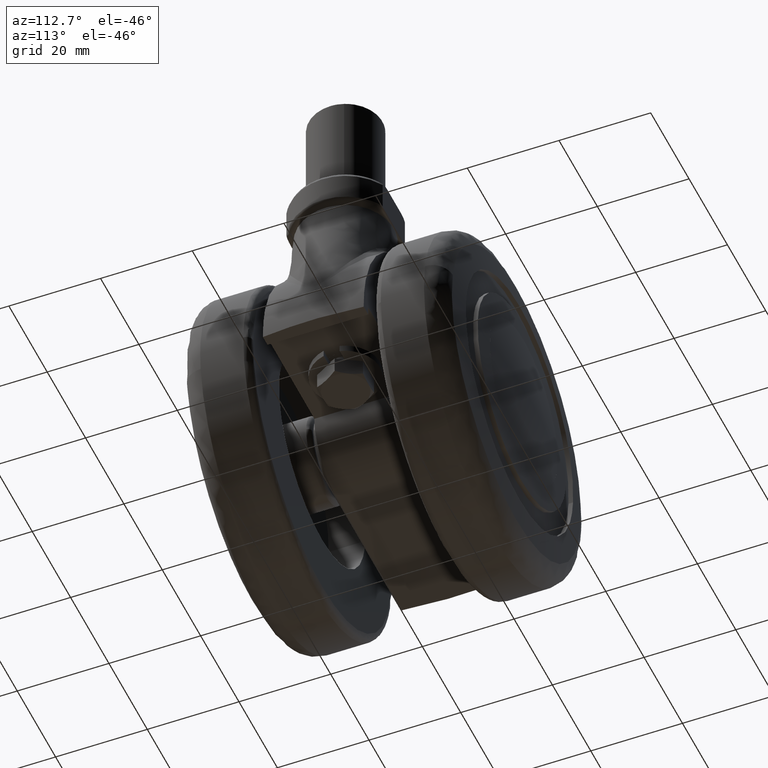
[diagram: clean part render]
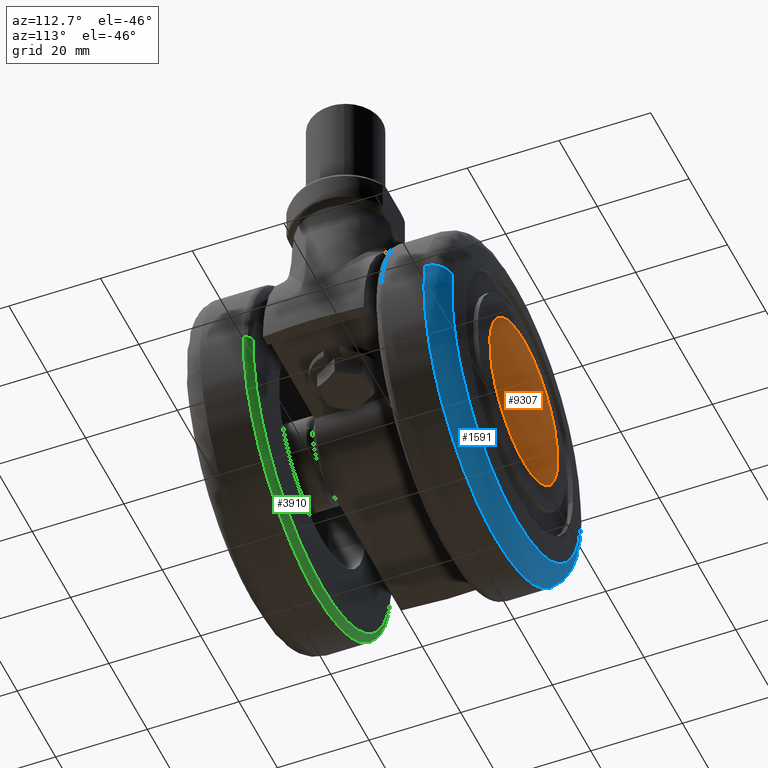
[diagram: same view with three faces highlighted in distinct colors, each labeled with its STEP entity id]
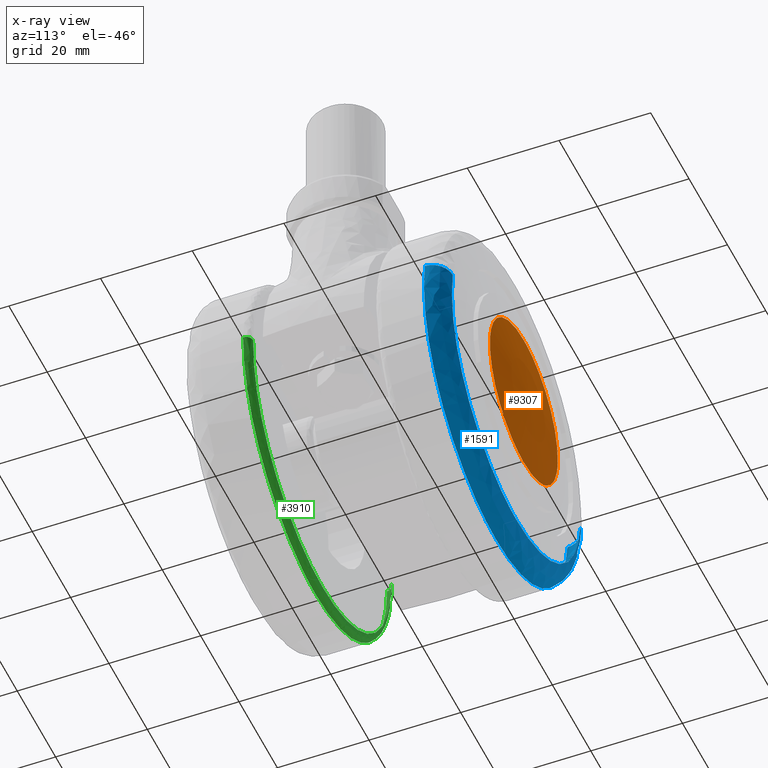
[diagram: x-ray of the same camera — body ghosted, the three highlighted faces saturated]
A machine part, auxiliary view with three faces highlighted in distinct colors.
The next image is the same camera in x-ray (body ghosted, the three faces saturated) — at least one of them is partly hidden behind the body in this view.
Their STEP definitions:

[orange] entity #9307 — the highlighted face is a freeform B-spline surface patch.
#6940=CARTESIAN_POINT('',(-17.666986804803450,30.499999552056249,-1.080559203234286));
#6941=VERTEX_POINT('',#6940);
#6947=CARTESIAN_POINT('',(0.0,30.499999552056249,-17.700000874372702));
#6948=VERTEX_POINT('',#6947);
#6949=CARTESIAN_POINT('',(0.0,30.499999552056249,-17.700000874372702));
#6950=CARTESIAN_POINT('',(-16.650498206592022,30.499999552056256,-17.700000874372698));
#6951=CARTESIAN_POINT('',(-17.666986804803447,30.499999552056256,-1.080559203234286));
#6959=(BOUNDED_CURVE()B_SPLINE_CURVE(2,(#6949,#6950,#6951),.UNSPECIFIED.,.F.,.U.)B_SPLINE_CURVE_WITH_KNOTS((3,3),(0.500000000000000,0.739332962240246),.UNSPECIFIED.)CURVE()GEOMETRIC_REPRESENTATION_ITEM()RATIONAL_B_SPLINE_CURVE((1.0,0.719603993285183,0.976072041669511))REPRESENTATION_ITEM(''));
#6960=EDGE_CURVE('',#6948,#6941,#6959,.T.);
#6962=CARTESIAN_POINT('',(17.576269484888599,30.499999552056249,2.089206056703662));
#6963=VERTEX_POINT('',#6962);
#6964=CARTESIAN_POINT('',(17.576269484888599,30.499999552056256,2.089206056703662));
#6965=CARTESIAN_POINT('',(17.700000874372698,30.499999552056249,1.048266969696663));
#6966=CARTESIAN_POINT('',(17.700000874372702,30.499999552056249,0.0));
#6967=CARTESIAN_POINT('',(17.700000874372705,30.499999552056252,-17.700000874372705));
#6968=CARTESIAN_POINT('',(0.0,30.499999552056249,-17.700000874372702));
#6976=(BOUNDED_CURVE()B_SPLINE_CURVE(2,(#6964,#6965,#6966,#6967,#6968),.UNSPECIFIED.,.F.,.U.)B_SPLINE_CURVE_WITH_KNOTS((3,2,3),(0.229562473514238,0.250000000000000,0.500000000000000),.UNSPECIFIED.)CURVE()GEOMETRIC_REPRESENTATION_ITEM()RATIONAL_B_SPLINE_CURVE((0.956026754185129,0.976055948332000,1.0,0.707106781186548,1.0))REPRESENTATION_ITEM(''));
#6977=EDGE_CURVE('',#6963,#6948,#6976,.T.);
#7021=CARTESIAN_POINT('',(0.0,30.499999552056249,17.700000874372702));
#7022=VERTEX_POINT('',#7021);
#7023=CARTESIAN_POINT('',(0.0,30.499999552056249,17.700000874372702));
#7024=CARTESIAN_POINT('',(15.720689885803013,30.499999552056256,17.700000874372705));
#7025=CARTESIAN_POINT('',(17.576269484888602,30.499999552056252,2.089206056703662));
#7033=(BOUNDED_CURVE()B_SPLINE_CURVE(2,(#7023,#7024,#7025),.UNSPECIFIED.,.F.,.U.)B_SPLINE_CURVE_WITH_KNOTS((3,3),(0.0,0.229562473514238),.UNSPECIFIED.)CURVE()GEOMETRIC_REPRESENTATION_ITEM()RATIONAL_B_SPLINE_CURVE((1.0,0.731050832854548,0.956026754185129))REPRESENTATION_ITEM(''));
#7034=EDGE_CURVE('',#7022,#6963,#7033,.T.);
#7036=CARTESIAN_POINT('',(-17.666986804803443,30.499999552056256,-1.080559203234286));
#7037=CARTESIAN_POINT('',(-17.700000874372698,30.499999552056259,-0.540783937187915));
#7038=CARTESIAN_POINT('',(-17.700000874372702,30.499999552056249,0.0));
#7039=CARTESIAN_POINT('',(-17.700000874372705,30.499999552056252,17.700000874372705));
#7040=CARTESIAN_POINT('',(0.0,30.499999552056249,17.700000874372702));
#7048=(BOUNDED_CURVE()B_SPLINE_CURVE(2,(#7036,#7037,#7038,#7039,#7040),.UNSPECIFIED.,.F.,.U.)B_SPLINE_CURVE_WITH_KNOTS((3,2,3),(0.739332962240247,0.750000000000000,1.0),.UNSPECIFIED.)CURVE()GEOMETRIC_REPRESENTATION_ITEM()RATIONAL_B_SPLINE_CURVE((0.976072041669512,0.987502787901365,1.0,0.707106781186548,1.0))REPRESENTATION_ITEM(''));
#7049=EDGE_CURVE('',#6941,#7022,#7048,.T.);
#9277=CARTESIAN_POINT('',(-19.317830197745025,28.661285594582328,19.318258914583183));
#9278=CARTESIAN_POINT('',(-9.722744867696759,30.226471714667028,19.445921285354927));
#9279=CARTESIAN_POINT('',(9.722799782367451,30.226471714667028,19.445921285354927));
#9280=CARTESIAN_POINT('',(19.317937873454291,28.661268030068637,19.318257481956454));
#9281=CARTESIAN_POINT('',(-19.445495439149660,30.226541646299722,9.722963494618814));
#9282=CARTESIAN_POINT('',(-9.787426761102388,31.812552999999951,9.787643971555742));
#9283=CARTESIAN_POINT('',(9.787482041100457,31.812552999999951,9.787643971555742));
#9284=CARTESIAN_POINT('',(19.445603816922389,30.226523848862591,9.722962768806397));
#9285=CARTESIAN_POINT('',(-19.445495439149660,30.226541646299722,-9.722962005065723));
#9286=CARTESIAN_POINT('',(-9.787426761102388,31.812552999999951,-9.787642472093635));
#9287=CARTESIAN_POINT('',(9.787482041100457,31.812552999999951,-9.787642472093635));
#9288=CARTESIAN_POINT('',(19.445603816922389,30.226523848862591,-9.722961279253418));
#9289=CARTESIAN_POINT('',(-19.317830236604710,28.661286071026499,-19.318255993896244));
#9290=CARTESIAN_POINT('',(-9.722744887384248,30.226472197429050,-19.445918345625486));
#9291=CARTESIAN_POINT('',(9.722799802055052,30.226472197429050,-19.445918345625486));
#9292=CARTESIAN_POINT('',(19.317937912314189,28.661268506512727,-19.318254561269743));
#9300=(BOUNDED_SURFACE()B_SPLINE_SURFACE(2,2,((#9277,#9281,#9285,#9289),(#9278,#9282,#9286,#9290),(#9279,#9283,#9287,#9291),(#9280,#9284,#9288,#9292)),.UNSPECIFIED.,.F.,.F.,.U.)B_SPLINE_SURFACE_WITH_KNOTS((3,1,3),(3,1,3),(36.098124809455868,55.141904456465539,74.185791663932804),(36.097702174568177,55.141904456465547,74.186103820800781),.UNSPECIFIED.)GEOMETRIC_REPRESENTATION_ITEM()RATIONAL_B_SPLINE_SURFACE(((1.013304978966519,1.006652341847496,1.006652341847496,1.013304976928158),(1.006652637119023,1.0,1.0,1.006652635080662),(1.006652637119023,1.0,1.0,1.006652635080662),(1.013305054112416,1.006652416993394,1.006652416993394,1.013305052074055)))REPRESENTATION_ITEM('')SURFACE());
#9301=ORIENTED_EDGE('',*,*,#7034,.T.);
#9302=ORIENTED_EDGE('',*,*,#6977,.T.);
#9303=ORIENTED_EDGE('',*,*,#6960,.T.);
#9304=ORIENTED_EDGE('',*,*,#7049,.T.);
#9305=EDGE_LOOP('',(#9301,#9302,#9303,#9304));
#9306=FACE_OUTER_BOUND('',#9305,.T.);
#9307=ADVANCED_FACE('',(#9306),#9300,.T.);

[blue] entity #1591 — the highlighted face is a freeform B-spline surface patch.
#273=CARTESIAN_POINT('',(-37.260424132890392,24.399335001054880,-4.232114534971689));
#274=VERTEX_POINT('',#273);
#290=CARTESIAN_POINT('',(0.0,24.399335000005451,-37.500000000000000));
#291=VERTEX_POINT('',#290);
#292=CARTESIAN_POINT('',(0.0,24.399335000005451,-37.500000000000000));
#293=CARTESIAN_POINT('',(-33.481790144008386,24.399335000005458,-37.500000000000000));
#294=CARTESIAN_POINT('',(-37.260424132890400,24.399335001054887,-4.232114534971689));
#302=(BOUNDED_CURVE()B_SPLINE_CURVE(2,(#292,#293,#294),.UNSPECIFIED.,.F.,.U.)B_SPLINE_CURVE_WITH_KNOTS((3,3),(0.500000000000000,0.730444235627714),.UNSPECIFIED.)CURVE()GEOMETRIC_REPRESENTATION_ITEM()RATIONAL_B_SPLINE_CURVE((1.0,0.730017784279973,0.957762331237371))REPRESENTATION_ITEM(''));
#303=EDGE_CURVE('',#291,#274,#302,.T.);
#305=CARTESIAN_POINT('',(27.647901938643450,24.399335000005479,-25.334630812213309));
#306=VERTEX_POINT('',#305);
#307=CARTESIAN_POINT('',(27.647901938643454,24.399335000005479,-25.334630812213312));
#308=CARTESIAN_POINT('',(16.500396505832679,24.399335000005454,-37.500000000000007));
#309=CARTESIAN_POINT('',(0.0,24.399335000005451,-37.500000000000000));
#317=(BOUNDED_CURVE()B_SPLINE_CURVE(2,(#307,#308,#309),.UNSPECIFIED.,.F.,.U.)B_SPLINE_CURVE_WITH_KNOTS((3,3),(0.368415198309261,0.500000000000000),.UNSPECIFIED.)CURVE()GEOMETRIC_REPRESENTATION_ITEM()RATIONAL_B_SPLINE_CURVE((0.853959782167923,0.845838815543479,1.0))REPRESENTATION_ITEM(''));
#318=EDGE_CURVE('',#306,#291,#317,.T.);
#411=CARTESIAN_POINT('',(36.957391236845567,24.399335001034899,6.356196422919185));
#412=VERTEX_POINT('',#411);
#458=CARTESIAN_POINT('',(36.957391236845559,24.399335001034895,6.356196422919186));
#459=CARTESIAN_POINT('',(37.500000000000000,24.399335000005454,3.201258624604239));
#460=CARTESIAN_POINT('',(37.500000000000000,24.399335000005451,-2.987958E-015));
#461=CARTESIAN_POINT('',(37.500000000000007,24.399335000005454,-14.582950903818212));
#462=CARTESIAN_POINT('',(27.647901938643454,24.399335000005479,-25.334630812213312));
#470=(BOUNDED_CURVE()B_SPLINE_CURVE(2,(#458,#459,#460,#461,#462),.UNSPECIFIED.,.F.,.U.)B_SPLINE_CURVE_WITH_KNOTS((3,2,3),(0.220849026354787,0.250000000000000,0.368415198309261),.UNSPECIFIED.)CURVE()GEOMETRIC_REPRESENTATION_ITEM()RATIONAL_B_SPLINE_CURVE((0.939659646669651,0.965847509990029,1.0,0.861267965643069,0.853959782167923))REPRESENTATION_ITEM(''));
#471=EDGE_CURVE('',#412,#306,#470,.T.);
#1461=CARTESIAN_POINT('',(33.118640990563513,28.858494704675589,5.695980706083025));
#1462=VERTEX_POINT('',#1461);
#1463=CARTESIAN_POINT('',(33.118640990563499,28.858494704675589,5.695980706083025));
#1464=CARTESIAN_POINT('',(36.957391235082049,28.330119688757037,6.356196422534316));
#1465=CARTESIAN_POINT('',(36.957391236845567,24.399335001034903,6.356196422919185));
#1473=(BOUNDED_CURVE()B_SPLINE_CURVE(2,(#1463,#1464,#1465),.UNSPECIFIED.,.F.,.U.)B_SPLINE_CURVE_WITH_KNOTS((3,3),(-1.707016080582619,-0.283065972864109),.UNSPECIFIED.)CURVE()GEOMETRIC_REPRESENTATION_ITEM()RATIONAL_B_SPLINE_CURVE((0.871223026979477,0.657276348781916,0.874224248278241))REPRESENTATION_ITEM(''));
#1474=EDGE_CURVE('',#1462,#412,#1473,.T.);
#1491=CARTESIAN_POINT('',(-33.390197982960132,28.858494704925779,-3.792526308501235));
#1492=VERTEX_POINT('',#1491);
#1508=CARTESIAN_POINT('',(-33.390197982960132,28.858494704925771,-3.792526308501235));
#1509=CARTESIAN_POINT('',(-37.260424142673919,28.330119692043091,-4.232114432548119));
#1510=CARTESIAN_POINT('',(-37.260424132890385,24.399335001054883,-4.232114534971689));
#1518=(BOUNDED_CURVE()B_SPLINE_CURVE(2,(#1508,#1509,#1510),.UNSPECIFIED.,.F.,.U.)B_SPLINE_CURVE_WITH_KNOTS((3,3),(-1.707016081476311,-0.283065972873740),.UNSPECIFIED.)CURVE()GEOMETRIC_REPRESENTATION_ITEM()RATIONAL_B_SPLINE_CURVE((0.891271465130289,0.672401481518124,0.894341749751451))REPRESENTATION_ITEM(''));
#1519=EDGE_CURVE('',#1492,#274,#1518,.T.);
#1525=CARTESIAN_POINT('',(-33.101077900871388,28.888372806870368,-3.759687463051096));
#1526=CARTESIAN_POINT('',(-29.341390437820305,28.888372806870361,-36.860765363922496));
#1527=CARTESIAN_POINT('',(3.759687463051091,28.888372806870358,-33.101077900871388));
#1528=CARTESIAN_POINT('',(36.860765363922475,28.888372806870361,-29.341390437820316));
#1529=CARTESIAN_POINT('',(33.101077900871388,28.888372806870368,3.759687463051085));
#1530=CARTESIAN_POINT('',(32.993477364782287,28.888372806870372,4.707025177226519));
#1531=CARTESIAN_POINT('',(32.831872584480607,28.888372806870375,5.646658358340000));
#1532=CARTESIAN_POINT('',(-37.539045840667178,28.576038493424608,-4.263760849260480));
#1533=CARTESIAN_POINT('',(-33.275284991406700,28.576038493424623,-41.802806689927642));
#1534=CARTESIAN_POINT('',(4.263760849260476,28.576038493424608,-37.539045840667178));
#1535=CARTESIAN_POINT('',(41.802806689927642,28.576038493424623,-33.275284991406700));
#1536=CARTESIAN_POINT('',(37.539045840667178,28.576038493424608,4.263760849260470));
#1537=CARTESIAN_POINT('',(37.417018954750482,28.576038493424619,5.338111176628155));
#1538=CARTESIAN_POINT('',(37.233747301966737,28.576038493424626,6.403723999414881));
#1539=CARTESIAN_POINT('',(-37.251045179339080,24.108020174241020,-4.231049150898621));
#1540=CARTESIAN_POINT('',(-33.019996028440438,24.108020174241016,-41.482094330237665));
#1541=CARTESIAN_POINT('',(4.231049150898616,24.108020174241009,-37.251045179339080));
#1542=CARTESIAN_POINT('',(41.482094330237665,24.108020174241016,-33.019996028440453));
#1543=CARTESIAN_POINT('',(37.251045179339080,24.108020174241020,4.231049150898611));
#1544=CARTESIAN_POINT('',(37.129954487272194,24.108020174241009,5.297157031026342));
#1545=CARTESIAN_POINT('',(36.948088899986978,24.108020174241030,6.354594440964673));
#1553=(BOUNDED_SURFACE()B_SPLINE_SURFACE(2,2,((#1525,#1532,#1539),(#1526,#1533,#1540),(#1527,#1534,#1541),(#1528,#1535,#1542),(#1529,#1536,#1543),(#1530,#1537,#1544),(#1531,#1538,#1545)),.UNSPECIFIED.,.F.,.F.,.U.)B_SPLINE_SURFACE_WITH_KNOTS((3,2,2,3),(3,3),(0.0,62.116394861809212,124.232789723618400,126.717443148538390),(0.0,7.429318410246981),.UNSPECIFIED.)GEOMETRIC_REPRESENTATION_ITEM()RATIONAL_B_SPLINE_SURFACE(((0.914236405898825,0.649283220488799,0.917613330009206),(0.646462762218676,0.459112568118270,0.648850608156679),(0.914236405898825,0.649283220488799,0.917613330009206),(0.646462762218676,0.459112568118270,0.648850608156679),(0.914236405898825,0.649283220488799,0.917613330009206),(0.903525470366373,0.641676401648412,0.906862831387589),(0.893671408859338,0.634678127734902,0.896972371835503)))REPRESENTATION_ITEM('')SURFACE());
#1554=ORIENTED_EDGE('',*,*,#471,.T.);
#1555=ORIENTED_EDGE('',*,*,#318,.T.);
#1556=ORIENTED_EDGE('',*,*,#303,.T.);
#1557=ORIENTED_EDGE('',*,*,#1519,.F.);
#1558=CARTESIAN_POINT('',(0.0,28.858494288646149,-33.604889112993462));
#1559=VERTEX_POINT('',#1558);
#1560=CARTESIAN_POINT('',(0.0,28.858494288646149,-33.604889112993462));
#1561=CARTESIAN_POINT('',(-30.004049366376591,28.858494288646146,-33.604889112993455));
#1562=CARTESIAN_POINT('',(-33.390197982960132,28.858494704925771,-3.792526308501235));
#1570=(BOUNDED_CURVE()B_SPLINE_CURVE(2,(#1560,#1561,#1562),.UNSPECIFIED.,.F.,.U.)B_SPLINE_CURVE_WITH_KNOTS((3,3),(0.500000000000000,0.730444236546521),.UNSPECIFIED.)CURVE()GEOMETRIC_REPRESENTATION_ITEM()RATIONAL_B_SPLINE_CURVE((1.0,0.730017783203523,0.957762333053458))REPRESENTATION_ITEM(''));
#1571=EDGE_CURVE('',#1559,#1492,#1570,.T.);
#1572=ORIENTED_EDGE('',*,*,#1571,.F.);
#1573=CARTESIAN_POINT('',(33.118640990563506,28.858494704675593,5.695980706083025));
#1574=CARTESIAN_POINT('',(33.604889112993447,28.858494288646153,2.868745097017918));
#1575=CARTESIAN_POINT('',(33.604889112993447,28.858494288646149,-3.534030E-015));
#1576=CARTESIAN_POINT('',(33.604889112993447,28.858494288646156,-33.604889112993455));
#1577=CARTESIAN_POINT('',(0.0,28.858494288646149,-33.604889112993462));
#1585=(BOUNDED_CURVE()B_SPLINE_CURVE(2,(#1573,#1574,#1575,#1576,#1577),.UNSPECIFIED.,.F.,.U.)B_SPLINE_CURVE_WITH_KNOTS((3,2,3),(0.220849026345278,0.250000000000000,0.500000000000000),.UNSPECIFIED.)CURVE()GEOMETRIC_REPRESENTATION_ITEM()RATIONAL_B_SPLINE_CURVE((0.939659646652566,0.965847509978889,1.0,0.707106781186548,1.0))REPRESENTATION_ITEM(''));
#1586=EDGE_CURVE('',#1462,#1559,#1585,.T.);
#1587=ORIENTED_EDGE('',*,*,#1586,.F.);
#1588=ORIENTED_EDGE('',*,*,#1474,.T.);
#1589=EDGE_LOOP('',(#1554,#1555,#1556,#1557,#1572,#1587,#1588));
#1590=FACE_OUTER_BOUND('',#1589,.T.);
#1591=ADVANCED_FACE('',(#1590),#1553,.T.);

[green] entity #3910 — the highlighted face is a freeform B-spline surface patch.
#2391=CARTESIAN_POINT('',(-37.488157098123487,-14.999999993783151,-0.942378579134916));
#2392=VERTEX_POINT('',#2391);
#2408=CARTESIAN_POINT('',(-28.357531062064691,-14.999999997795680,-24.537734860087301));
#2409=VERTEX_POINT('',#2408);
#2410=CARTESIAN_POINT('',(-28.357531062064695,-14.999999997795685,-24.537734860087301));
#2411=CARTESIAN_POINT('',(-37.150462118425452,-14.999999996067618,-14.376005711933878));
#2412=CARTESIAN_POINT('',(-37.488157098123487,-14.999999993783151,-0.942378579134916));
#2420=(BOUNDED_CURVE()B_SPLINE_CURVE(2,(#2410,#2411,#2412),.UNSPECIFIED.,.F.,.U.)B_SPLINE_CURVE_WITH_KNOTS((3,3),(0.635882132082846,0.745579891769716),.UNSPECIFIED.)CURVE()GEOMETRIC_REPRESENTATION_ITEM()RATIONAL_B_SPLINE_CURVE((0.854663299357961,0.865851778234720,0.989826157681369))REPRESENTATION_ITEM(''));
#2421=EDGE_CURVE('',#2409,#2392,#2420,.T.);
#2469=CARTESIAN_POINT('',(0.0,-15.0,-37.500000000000000));
#2470=VERTEX_POINT('',#2469);
#2471=CARTESIAN_POINT('',(0.0,-15.0,-37.500000000000000));
#2472=CARTESIAN_POINT('',(-17.141299843162088,-15.000000000000002,-37.500000000000000));
#2473=CARTESIAN_POINT('',(-28.357531062064695,-14.999999997795685,-24.537734860087301));
#2481=(BOUNDED_CURVE()B_SPLINE_CURVE(2,(#2471,#2472,#2473),.UNSPECIFIED.,.F.,.U.)B_SPLINE_CURVE_WITH_KNOTS((3,3),(0.500000000000000,0.635882132082846),.UNSPECIFIED.)CURVE()GEOMETRIC_REPRESENTATION_ITEM()RATIONAL_B_SPLINE_CURVE((1.0,0.840804179820082,0.854663299357961))REPRESENTATION_ITEM(''));
#2482=EDGE_CURVE('',#2470,#2409,#2481,.T.);
#2484=CARTESIAN_POINT('',(37.488157098123487,-14.999999993783151,0.942378579134925));
#2485=VERTEX_POINT('',#2484);
#2486=CARTESIAN_POINT('',(37.488157098123501,-14.999999993783149,0.942378579134925));
#2487=CARTESIAN_POINT('',(37.500000000000000,-14.999999999999998,0.471263704636508));
#2488=CARTESIAN_POINT('',(37.500000000000000,-15.0,0.0));
#2489=CARTESIAN_POINT('',(37.500000000000000,-14.999999999999996,-37.500000000000000));
#2490=CARTESIAN_POINT('',(0.0,-15.0,-37.500000000000000));
#2498=(BOUNDED_CURVE()B_SPLINE_CURVE(2,(#2486,#2487,#2488,#2489,#2490),.UNSPECIFIED.,.F.,.U.)B_SPLINE_CURVE_WITH_KNOTS((3,2,3),(0.245579891769716,0.250000000000000,0.500000000000000),.UNSPECIFIED.)CURVE()GEOMETRIC_REPRESENTATION_ITEM()RATIONAL_B_SPLINE_CURVE((0.989826157681370,0.994821521091714,1.0,0.707106781186547,1.0))REPRESENTATION_ITEM(''));
#2499=EDGE_CURVE('',#2485,#2470,#2498,.T.);
#3822=CARTESIAN_POINT('',(37.484507708172224,-15.104586337698418,0.942286840635368));
#3823=CARTESIAN_POINT('',(38.426794548807621,-15.104586337698420,-36.542220867536869));
#3824=CARTESIAN_POINT('',(0.942286840635378,-15.104586337698418,-37.484507708172224));
#3825=CARTESIAN_POINT('',(-36.542220867536848,-15.104586337698420,-38.426794548807621));
#3826=CARTESIAN_POINT('',(-37.484507708172224,-15.104586337698418,-0.942286840635381));
#3827=CARTESIAN_POINT('',(37.604729302184516,-13.383994995192797,0.945308975189726));
#3828=CARTESIAN_POINT('',(38.550038277374256,-13.383994995192795,-36.659420326994791));
#3829=CARTESIAN_POINT('',(0.945308975189737,-13.383994995192797,-37.604729302184516));
#3830=CARTESIAN_POINT('',(-36.659420326994770,-13.383994995192795,-38.550038277374256));
#3831=CARTESIAN_POINT('',(-37.604729302184516,-13.383994995192797,-0.945308975189739));
#3832=CARTESIAN_POINT('',(35.884636533293829,-13.503611562649683,0.902069224159345));
#3833=CARTESIAN_POINT('',(36.786705757453170,-13.503611562649683,-34.982567309134467));
#3834=CARTESIAN_POINT('',(0.902069224159356,-13.503611562649683,-35.884636533293829));
#3835=CARTESIAN_POINT('',(-34.982567309134467,-13.503611562649683,-36.786705757453170));
#3836=CARTESIAN_POINT('',(-35.884636533293829,-13.503611562649683,-0.902069224159358));
#3844=(BOUNDED_SURFACE()B_SPLINE_SURFACE(2,2,((#3822,#3827,#3832),(#3823,#3828,#3833),(#3824,#3829,#3834),(#3825,#3830,#3835),(#3826,#3831,#3836)),.UNSPECIFIED.,.F.,.F.,.U.)B_SPLINE_SURFACE_WITH_KNOTS((3,2,3),(3,3),(0.0,62.125985938559992,124.251971877120000),(0.0,2.733557101182347),.UNSPECIFIED.)GEOMETRIC_REPRESENTATION_ITEM()RATIONAL_B_SPLINE_SURFACE(((0.910892958135503,0.599412749565811,0.915966979117423),(0.644098587632688,0.423848819947659,0.647686462276886),(0.910892958135503,0.599412749565811,0.915966979117423),(0.644098587632688,0.423848819947659,0.647686462276886),(0.910892958135503,0.599412749565811,0.915966979117423)))REPRESENTATION_ITEM('')SURFACE());
#3845=ORIENTED_EDGE('',*,*,#2499,.T.);
#3846=ORIENTED_EDGE('',*,*,#2482,.T.);
#3847=ORIENTED_EDGE('',*,*,#2421,.T.);
#3848=CARTESIAN_POINT('',(-35.988630824293402,-13.500000000000000,-0.904683436412508));
#3849=VERTEX_POINT('',#3848);
#3850=CARTESIAN_POINT('',(-37.488157098123494,-14.999999993783160,-0.942378579134916));
#3851=CARTESIAN_POINT('',(-37.488157085693963,-13.500000020205574,-0.942378578812694));
#3852=CARTESIAN_POINT('',(-35.988630824293402,-13.500000000000002,-0.904683436412508));
#3860=(BOUNDED_CURVE()B_SPLINE_CURVE(2,(#3850,#3851,#3852),.UNSPECIFIED.,.F.,.U.)B_SPLINE_CURVE_WITH_KNOTS((3,3),(-1.723441273450363,-0.263586892869176),.UNSPECIFIED.)CURVE()GEOMETRIC_REPRESENTATION_ITEM()RATIONAL_B_SPLINE_CURVE((0.883897564130760,0.626638731225234,0.888510404060895))REPRESENTATION_ITEM(''));
#3861=EDGE_CURVE('',#2392,#3849,#3860,.T.);
#3862=ORIENTED_EDGE('',*,*,#3861,.T.);
#3863=CARTESIAN_POINT('',(0.0,-13.500000000000000,-36.0));
#3864=VERTEX_POINT('',#3863);
#3865=CARTESIAN_POINT('',(0.0,-13.500000000000000,-36.0));
#3866=CARTESIAN_POINT('',(-35.106403542116020,-13.499999999999998,-36.000000000000007));
#3867=CARTESIAN_POINT('',(-35.988630824293402,-13.500000000000004,-0.904683436412508));
#3875=(BOUNDED_CURVE()B_SPLINE_CURVE(2,(#3865,#3866,#3867),.UNSPECIFIED.,.F.,.U.)B_SPLINE_CURVE_WITH_KNOTS((3,3),(0.500000000000000,0.745579891767878),.UNSPECIFIED.)CURVE()GEOMETRIC_REPRESENTATION_ITEM()RATIONAL_B_SPLINE_CURVE((1.0,0.712285260096988,0.989826157677214))REPRESENTATION_ITEM(''));
#3876=EDGE_CURVE('',#3864,#3849,#3875,.T.);
#3877=ORIENTED_EDGE('',*,*,#3876,.F.);
#3878=CARTESIAN_POINT('',(35.988630824293409,-13.500000000000000,0.904683436412513));
#3879=VERTEX_POINT('',#3878);
#3880=CARTESIAN_POINT('',(35.988630824293416,-13.500000000000004,0.904683436412513));
#3881=CARTESIAN_POINT('',(36.0,-13.500000000000000,0.452413156640238));
#3882=CARTESIAN_POINT('',(36.0,-13.500000000000000,0.0));
#3883=CARTESIAN_POINT('',(36.0,-13.500000000000000,-36.0));
#3884=CARTESIAN_POINT('',(0.0,-13.500000000000000,-36.0));
#3892=(BOUNDED_CURVE()B_SPLINE_CURVE(2,(#3880,#3881,#3882,#3883,#3884),.UNSPECIFIED.,.F.,.U.)B_SPLINE_CURVE_WITH_KNOTS((3,2,3),(0.245579891767878,0.250000000000000,0.500000000000000),.UNSPECIFIED.)CURVE()GEOMETRIC_REPRESENTATION_ITEM()RATIONAL_B_SPLINE_CURVE((0.989826157677214,0.994821521089559,1.0,0.707106781186547,1.0))REPRESENTATION_ITEM(''));
#3893=EDGE_CURVE('',#3879,#3864,#3892,.T.);
#3894=ORIENTED_EDGE('',*,*,#3893,.F.);
#3895=CARTESIAN_POINT('',(37.488157098123494,-14.999999993783145,0.942378579134925));
#3896=CARTESIAN_POINT('',(37.488157085693956,-13.500000020205579,0.942378578812697));
#3897=CARTESIAN_POINT('',(35.988630824293402,-13.500000000000000,0.904683436412513));
#3905=(BOUNDED_CURVE()B_SPLINE_CURVE(2,(#3895,#3896,#3897),.UNSPECIFIED.,.F.,.U.)B_SPLINE_CURVE_WITH_KNOTS((3,3),(-1.723441273450362,-0.263586892869184),.UNSPECIFIED.)CURVE()GEOMETRIC_REPRESENTATION_ITEM()RATIONAL_B_SPLINE_CURVE((0.883897564130759,0.626638731225236,0.888510404060893))REPRESENTATION_ITEM(''));
#3906=EDGE_CURVE('',#2485,#3879,#3905,.T.);
#3907=ORIENTED_EDGE('',*,*,#3906,.F.);
#3908=EDGE_LOOP('',(#3845,#3846,#3847,#3862,#3877,#3894,#3907));
#3909=FACE_OUTER_BOUND('',#3908,.T.);
#3910=ADVANCED_FACE('',(#3909),#3844,.T.);